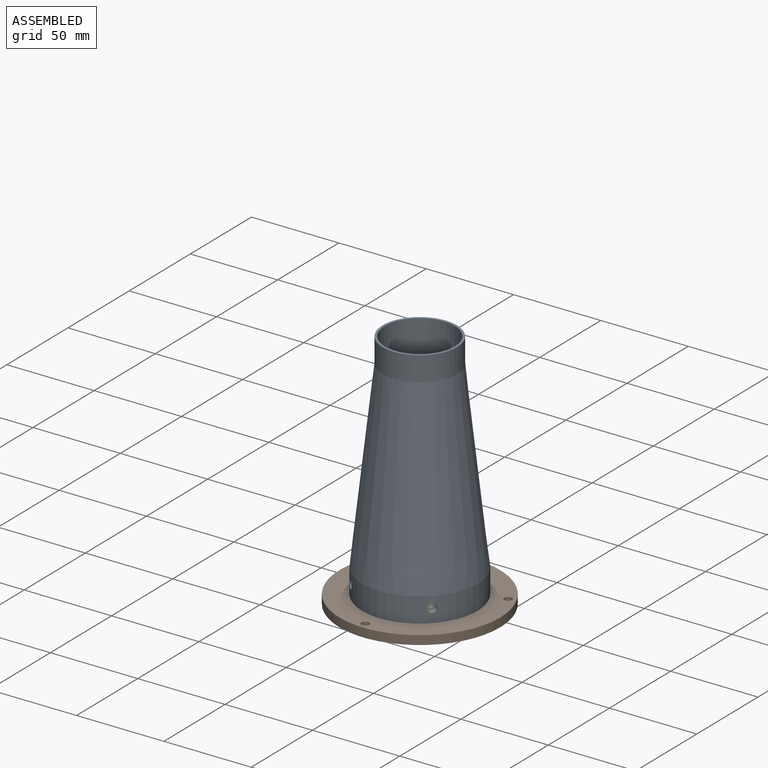
[diagram: assembled view]
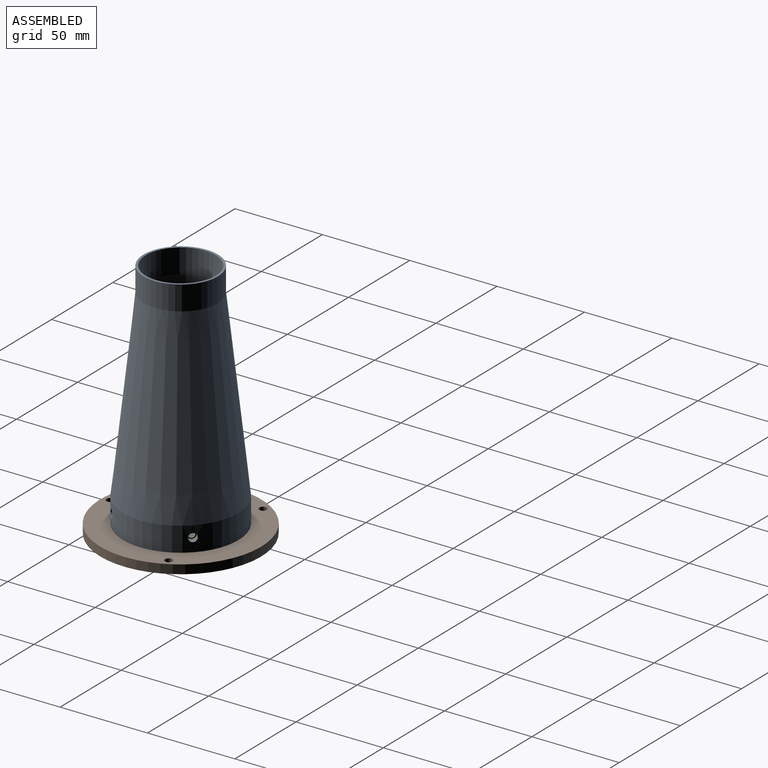
[diagram: assembled view, second angle]
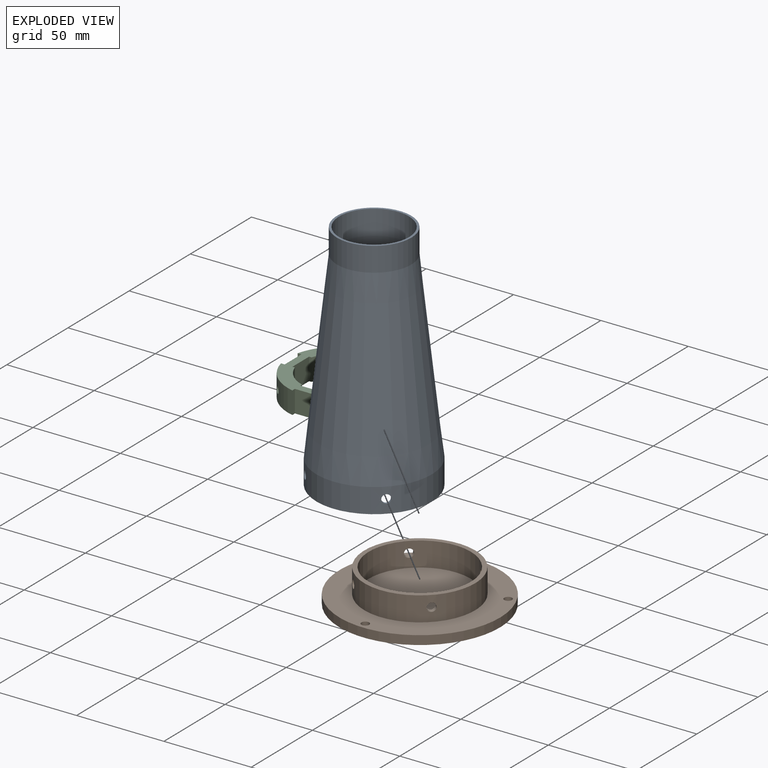
[diagram: exploded view]
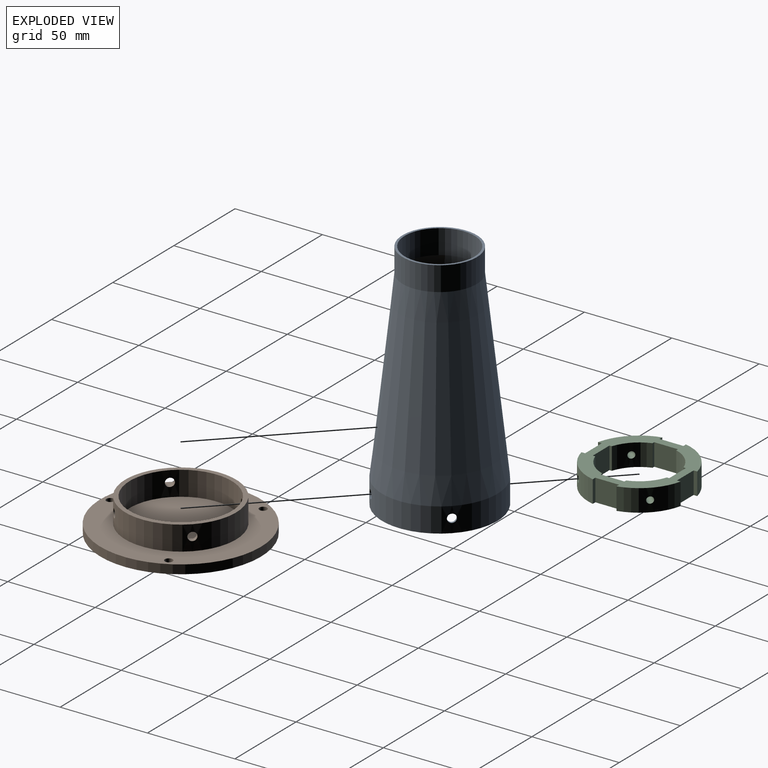
[diagram: exploded view, second angle]
ASSEMBLY  parts=3 mates=4
PART A: 12 faces, bbox 66x66x133.4 mm
  f0: cylinder r=31.75mm len=63.5mm, axis (0,0,-1), area 2713.8mm2, adj f2,f3,f8,f9,f10,f11
  f1: cylinder r=33.02mm len=66.04mm, axis (0,0,-1), area 2839.9mm2, adj f3,f4,f8,f9,f10,f11
  f2: cone r=31.75mm half-angle=6.4deg, axis (0,0,-1), area 17244.2mm2, adj f0,f7
  f3: plane 66.04x66.04mm, normal (0,0,-1), area 258.4mm2, adj f0,f1
  f4: cone r=33.02mm half-angle=6.4deg, axis (0,0,-1), area 18090.6mm2, adj f1,f5
  f5: cylinder r=21.27mm len=42.55mm, axis (0,0,-1), area 1857.8mm2, adj f4,f6
  f6: plane 42.55x42.55mm, normal (0,0,1), area 164.7mm2, adj f5,f7
  f7: cylinder r=20mm len=40.01mm, axis (0,0,-1), area 1755.7mm2, adj f2,f6
  f8: cylinder r=2.41mm len=4.83mm, axis (0,1,0), area 19.3mm2, adj f0,f1
  f9: cylinder r=2.41mm len=4.83mm, axis (0,1,0), area 19.3mm2, adj f0,f1
  f10: cylinder r=2.41mm len=4.83mm, axis (1,0,0), area 19.3mm2, adj f0,f1
  f11: cylinder r=2.41mm len=4.83mm, axis (1,0,0), area 19.3mm2, adj f0,f1
PART B: 14 faces, bbox 91.9x91.9x19.1 mm
  f0: cylinder r=29.21mm len=58.42mm, axis (0,0,-1), area 2490.7mm2, adj f2,f6,f7,f8,f12,f13
  f1: cylinder r=31.75mm len=63.5mm, axis (0,0,-1), area 2713.6mm2, adj f2,f3,f7,f8,f12,f13
  f2: plane 63.5x63.5mm, normal (0,0,1), area 486.4mm2, adj f0,f1
  f3: plane 91.95x91.95mm, normal (0,0,1), area 3426.6mm2, adj f1,f5,f9,f10,f11
  f4: plane 91.95x91.95mm, normal (0,0,-1), area 6593.5mm2, adj f5,f9,f10,f11
  f5: cylinder r=45.97mm len=91.95mm, axis (0,0,1), area 1467.4mm2, adj f3,f4
  f6: plane 58.42x58.42mm, normal (0,0,1), area 2680.5mm2, adj f0
  f7: cylinder r=2.41mm len=4.83mm, axis (0,-1,0), area 38.6mm2, adj f0,f1
  f8: cylinder r=2.41mm len=4.83mm, axis (0,-1,0), area 38.6mm2, adj f0,f1
  f9: cylinder r=2.22mm len=5.08mm, axis (0,0,1), area 70.9mm2, adj f3,f4
  f10: cylinder r=2.22mm len=5.08mm, axis (0,0,1), area 70.9mm2, adj f3,f4
  f11: cylinder r=2.22mm len=5.08mm, axis (0,0,1), area 70.9mm2, adj f3,f4
  f12: cylinder r=2.41mm len=4.83mm, axis (1,0,0), area 38.6mm2, adj f0,f1
  f13: cylinder r=2.41mm len=4.83mm, axis (1,0,0), area 38.6mm2, adj f0,f1
PART C: 38 faces, bbox 56.8x56.8x12.7 mm
  f0: cylinder r=21.59mm len=13.7mm, axis (0,0,-1), area 243.7mm2, adj f8,f9,f26,f30,f34
  f1: cylinder r=21.59mm len=13.7mm, axis (0,0,-1), area 243.7mm2, adj f8,f9,f11,f24,f35
  f2: cylinder r=29.21mm len=21.61mm, axis (0,0,-1), area 397.1mm2, adj f8,f9,f21,f31,f35
  f3: cylinder r=29.21mm len=21.61mm, axis (0,0,-1), area 397.1mm2, adj f8,f9,f15,f16,f34
  f4: cylinder r=21.59mm len=13.7mm, axis (0,0,-1), area 243.7mm2, adj f8,f9,f12,f29,f36
  f5: cylinder r=21.59mm len=13.7mm, axis (0,0,-1), area 243.7mm2, adj f8,f9,f23,f27,f37
  f6: cylinder r=29.21mm len=21.61mm, axis (0,0,-1), area 397.1mm2, adj f8,f9,f18,f19,f37
  f7: cylinder r=29.21mm len=21.61mm, axis (0,0,-1), area 397.1mm2, adj f8,f9,f13,f33,f36
  f8: plane 56.82x56.82mm, normal (0,0,1), area 1038.3mm2, adj f0,f1,f2,f3,f4,f5,f6,f7
  f9: plane 56.82x56.82mm, normal (0,0,-1), area 1038.3mm2, adj f0,f1,f2,f3,f4,f5,f6,f7
  f10: plane 13.59x12.7mm, normal (0,-1,0), area 172.6mm2, adj f8,f9,f11,f12
  f11: plane 12.7x1.35mm, normal (1,0,0), area 17.2mm2, adj f1,f8,f9,f10
  f12: plane 12.7x1.35mm, normal (-1,0,0), area 17.2mm2, adj f4,f8,f9,f10
  f13: plane 12.7x2.12mm, normal (0,-1,0), area 26.9mm2, adj f7,f8,f9,f14
  f14: plane 13.59x12.7mm, normal (1,0,0), area 172.6mm2, adj f8,f9,f13,f15
  f15: plane 12.7x2.12mm, normal (0,1,0), area 26.9mm2, adj f3,f8,f9,f14
  f16: plane 12.7x2.12mm, normal (-1,0,0), area 26.9mm2, adj f3,f8,f9,f17
  f17: plane 13.59x12.7mm, normal (0,-1,0), area 172.6mm2, adj f8,f9,f16,f18
  f18: plane 12.7x2.12mm, normal (1,0,0), area 26.9mm2, adj f6,f8,f9,f17
  f19: plane 12.7x2.12mm, normal (0,1,0), area 26.9mm2, adj f6,f8,f9,f20
  f20: plane 13.59x12.7mm, normal (-1,0,0), area 172.6mm2, adj f8,f9,f19,f21
  f21: plane 12.7x2.12mm, normal (0,-1,0), area 26.9mm2, adj f2,f8,f9,f20
  f22: plane 13.59x12.7mm, normal (1,0,0), area 172.6mm2, adj f8,f9,f23,f24
  f23: plane 12.7x1.35mm, normal (0,1,0), area 17.2mm2, adj f5,f8,f9,f22
  f24: plane 12.7x1.35mm, normal (0,-1,0), area 17.2mm2, adj f1,f8,f9,f22
  f25: plane 13.59x12.7mm, normal (0,1,0), area 172.6mm2, adj f8,f9,f26,f27
  f26: plane 12.7x1.35mm, normal (-1,0,0), area 17.2mm2, adj f0,f8,f9,f25
  f27: plane 12.7x1.35mm, normal (1,0,0), area 17.2mm2, adj f5,f8,f9,f25
  f28: plane 13.59x12.7mm, normal (-1,0,0), area 172.6mm2, adj f8,f9,f29,f30
  f29: plane 12.7x1.35mm, normal (0,-1,0), area 17.2mm2, adj f4,f8,f9,f28
  f30: plane 12.7x1.35mm, normal (0,1,0), area 17.2mm2, adj f0,f8,f9,f28
  f31: plane 12.7x2.12mm, normal (1,0,0), area 26.9mm2, adj f2,f8,f9,f32
  f32: plane 13.59x12.7mm, normal (0,1,0), area 172.6mm2, adj f8,f9,f31,f33
  f33: plane 12.7x2.12mm, normal (-1,0,0), area 26.9mm2, adj f7,f8,f9,f32
  f34: cylinder r=1.91mm len=8.14mm, axis (-0.71,0.71,0), area 91.3mm2, adj f0,f3
  f35: cylinder r=1.91mm len=8.14mm, axis (-0.71,0.71,0), area 91.3mm2, adj f1,f2
  f36: cylinder r=1.91mm len=8.14mm, axis (0.71,0.71,0), area 91.3mm2, adj f4,f7
  f37: cylinder r=1.91mm len=8.14mm, axis (0.71,0.71,0), area 91.3mm2, adj f5,f6
PLACE A rot(axis=(0,0,1),45deg) t=(-35.82,-11.05,-86.92)mm
PLACE B rot(axis=(0,0,1),45deg) t=(-35.82,-11.05,-86.85)mm
PLACE C t=(-35.82,-11.05,-85.58)mm
MATE cylindrical B.f7 <-> C.f34  axis (0.71,-0.71,0) through (-13.35,-33.52,-79.23)mm
MATE cylindrical A.f8 <-> B.f7  axis (-0.71,0.71,0) through (-12.46,-34.41,-79.23)mm
MATE cylindrical C.f2 <-> B.f0  axis (0,0,-1) through (-35.82,-11.05,-79.23)mm
MATE cylindrical A.f0 <-> B.f1  axis (0,0,-1) through (-35.82,-11.05,-79.9)mm
